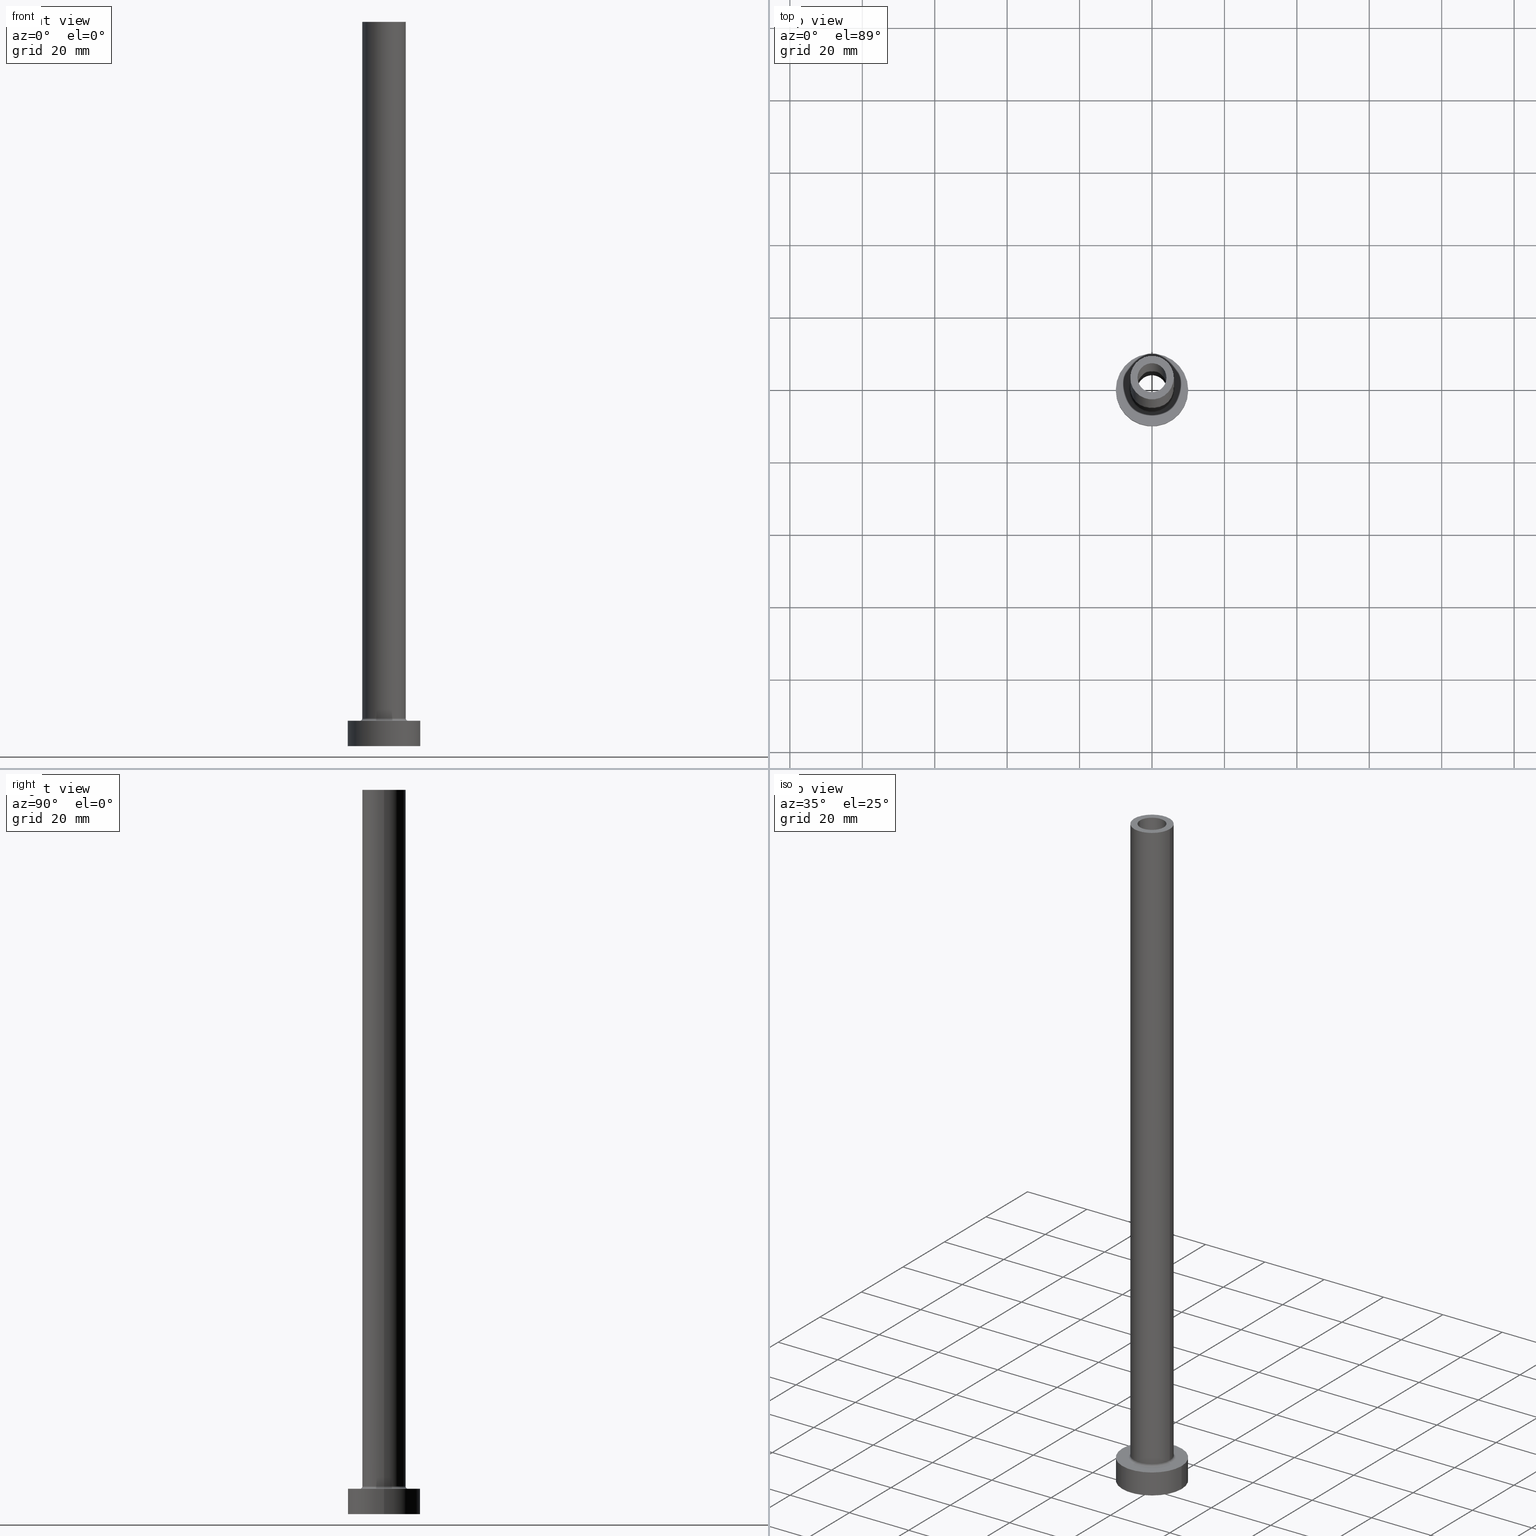
[diagram: canonical four-view strip — front | top / right | iso, engineering-drawing reading convention]
A machine part, canonical four-view strip (front | top / right | iso — engineering-drawing reading convention). The complete STEP part file that produces these views, byte-faithful:
ISO-10303-21;
HEADER;
FILE_DESCRIPTION (( 'STEP AP203' ),
    '1' );
FILE_NAME ('7876.STEP',
    '2023-02-13T12:45:52',
    ( '' ),
    ( '' ),
    'SwSTEP 2.0',
    'SolidWorks 2019',
    '' );
FILE_SCHEMA (( 'CONFIG_CONTROL_DESIGN' ));
ENDSEC;

DATA;
#1 = CARTESIAN_POINT ( 'NONE',  ( 0.000000000000000000, 0.000000000000000000, 200.0000000000000000 ) ) ;
#2 = ORIENTED_EDGE ( 'NONE', *, *, #424, .F. ) ;
#3 = EDGE_CURVE ( 'NONE', #444, #308, #278, .T. ) ;
#4 = ORIENTED_EDGE ( 'NONE', *, *, #450, .T. ) ;
#5 = EDGE_LOOP ( 'NONE', ( #305, #304, #359, #113 ) ) ;
#6 = AXIS2_PLACEMENT_3D ( 'NONE', #423, #202, #389 ) ;
#7 = AXIS2_PLACEMENT_3D ( 'NONE', #411, #235, #431 ) ;
#8 = DIRECTION ( 'NONE',  ( -0.000000000000000000, -0.000000000000000000, -1.000000000000000000 ) ) ;
#9 = ORIENTED_EDGE ( 'NONE', *, *, #3, .T. ) ;
#10 = DIRECTION ( 'NONE',  ( 0.000000000000000000, 0.000000000000000000, 1.000000000000000000 ) ) ;
#11 = EDGE_CURVE ( 'NONE', #86, #270, #30, .T. ) ;
#12 = CARTESIAN_POINT ( 'NONE',  ( 0.000000000000000000, 0.000000000000000000, 155.0000000000000284 ) ) ;
#13 = MANIFOLD_SOLID_BREP ( 'Odebrat vysunut�m4', #16 ) ;
#14 = AXIS2_PLACEMENT_3D ( 'NONE', #171, #81, #439 ) ;
#15 = ORIENTED_EDGE ( 'NONE', *, *, #430, .F. ) ;
#16 = CLOSED_SHELL ( 'NONE', ( #131, #164, #387, #97, #414, #143, #299, #232, #59, #116, #71, #150, #101, #36 ) ) ;
#17 = DIRECTION ( 'NONE',  ( 0.000000000000000000, 0.000000000000000000, 1.000000000000000000 ) ) ;
#18 = DIRECTION ( 'NONE',  ( 0.000000000000000000, 0.000000000000000000, -1.000000000000000000 ) ) ;
#19 = CARTESIAN_POINT ( 'NONE',  ( -6.000000000000000888, 0.000000000000000000, 200.0000000000000000 ) ) ;
#20 = DIRECTION ( 'NONE',  ( 1.000000000000000000, 0.000000000000000000, 0.000000000000000000 ) ) ;
#21 = CC_DESIGN_APPROVAL ( #47, ( #137 ) ) ;
#22 = EDGE_LOOP ( 'NONE', ( #313, #297, #160, #456 ) ) ;
#23 = AXIS2_PLACEMENT_3D ( 'NONE', #432, #10, #436 ) ;
#24 = AXIS2_PLACEMENT_3D ( 'NONE', #197, #378, #455 ) ;
#25 = EDGE_CURVE ( 'NONE', #112, #126, #217, .T. ) ;
#26 = DIRECTION ( 'NONE',  ( -1.000000000000000000, 0.000000000000000000, 0.000000000000000000 ) ) ;
#27 = CARTESIAN_POINT ( 'NONE',  ( 4.000000000000000000, 4.898587196589411843E-16, 200.0000000000000000 ) ) ;
#28 = CC_DESIGN_PERSON_AND_ORGANIZATION_ASSIGNMENT ( #286, #221, ( #344 ) ) ;
#29 = APPROVAL_ROLE ( '' ) ;
#30 = CIRCLE ( 'NONE', #145, 4.000000000000000000 ) ;
#31 = PLANE ( 'NONE',  #452 ) ;
#32 = PERSON_AND_ORGANIZATION ( #303, #199 ) ;
#33 = PRODUCT ( '7876', '7876', '', ( #418 ) ) ;
#34 = ORIENTED_EDGE ( 'NONE', *, *, #408, .T. ) ;
#35 = DIRECTION ( 'NONE',  ( 0.000000000000000000, 0.000000000000000000, 1.000000000000000000 ) ) ;
#36 = ADVANCED_FACE ( 'NONE', ( #182 ), #40, .F. ) ;
#37 = VERTEX_POINT ( 'NONE', #261 ) ;
#38 = DIRECTION ( 'NONE',  ( 1.000000000000000000, 0.000000000000000000, 0.000000000000000000 ) ) ;
#39 = EDGE_LOOP ( 'NONE', ( #93, #9 ) ) ;
#40 = CYLINDRICAL_SURFACE ( 'NONE', #397, 4.000000000000000000 ) ;
#41 = CARTESIAN_POINT ( 'NONE',  ( -6.700000000000001066, 8.205133554287267548E-16, 7.700000000000012612 ) ) ;
#42 = VERTEX_POINT ( 'NONE', #441 ) ;
#43 = VECTOR ( 'NONE', #247, 1000.000000000000000 ) ;
#44 = APPROVAL_STATUS ( 'not_yet_approved' ) ;
#45 = EDGE_LOOP ( 'NONE', ( #291, #49 ) ) ;
#46 = DIRECTION ( 'NONE',  ( -0.000000000000000000, -0.000000000000000000, -1.000000000000000000 ) ) ;
#47 = APPROVAL ( #100, 'NEUR�EN�' ) ;
#48 = AXIS2_PLACEMENT_3D ( 'NONE', #77, #46, #354 ) ;
#49 = ORIENTED_EDGE ( 'NONE', *, *, #175, .F. ) ;
#50 = CARTESIAN_POINT ( 'NONE',  ( 0.000000000000000000, 0.000000000000000000, 7.000000000000000000 ) ) ;
#51 = DIRECTION ( 'NONE',  ( 0.000000000000000000, 0.000000000000000000, 1.000000000000000000 ) ) ;
#52 = ORIENTED_EDGE ( 'NONE', *, *, #169, .F. ) ;
#53 = LOCAL_TIME ( 13, 45, 52.00000000000000000, #162 ) ;
#54 = DIRECTION ( 'NONE',  ( 1.000000000000000000, 0.000000000000000000, 0.000000000000000000 ) ) ;
#55 = EDGE_CURVE ( 'NONE', #308, #444, #454, .T. ) ;
#56 = VERTEX_POINT ( 'NONE', #417 ) ;
#57 = LINE ( 'NONE', #200, #85 ) ;
#58 = AXIS2_PLACEMENT_3D ( 'NONE', #208, #393, #70 ) ;
#59 = ADVANCED_FACE ( 'NONE', ( #153 ), #157, .T. ) ;
#60 = APPROVAL_STATUS ( 'not_yet_approved' ) ;
#61 = DIRECTION ( 'NONE',  ( -1.000000000000000000, 0.000000000000000000, 0.000000000000000000 ) ) ;
#62 = DATE_TIME_ROLE ( 'classification_date' ) ;
#63 = VERTEX_POINT ( 'NONE', #154 ) ;
#64 = EDGE_CURVE ( 'NONE', #308, #373, #263, .T. ) ;
#65 = CARTESIAN_POINT ( 'NONE',  ( 10.00000000000000000, 1.224646799147353256E-15, 0.000000000000000000 ) ) ;
#66 = ORIENTED_EDGE ( 'NONE', *, *, #25, .F. ) ;
#67 = CARTESIAN_POINT ( 'NONE',  ( 0.000000000000000000, 0.000000000000000000, 7.700000000000012612 ) ) ;
#68 = COORDINATED_UNIVERSAL_TIME_OFFSET ( 1, 0, .AHEAD. ) ;
#69 = CARTESIAN_POINT ( 'NONE',  ( -10.00000000000000000, 0.000000000000000000, 0.000000000000000000 ) ) ;
#70 = DIRECTION ( 'NONE',  ( 1.000000000000000000, 0.000000000000000000, 0.000000000000000000 ) ) ;
#71 = ADVANCED_FACE ( 'NONE', ( #375 ), #361, .F. ) ;
#72 = CARTESIAN_POINT ( 'NONE',  ( 4.000000000000000000, 4.898587196589411843E-16, 155.0000000000000284 ) ) ;
#73 = CIRCLE ( 'NONE', #23, 4.000000000000000000 ) ;
#74 = DIRECTION ( 'NONE',  ( -1.000000000000000000, 0.000000000000000000, 0.000000000000000000 ) ) ;
#75 = CALENDAR_DATE ( 2023, 13, 2 ) ;
#76 = ORIENTED_EDGE ( 'NONE', *, *, #25, .T. ) ;
#77 = CARTESIAN_POINT ( 'NONE',  ( 0.000000000000000000, 0.000000000000000000, 7.000000000000000000 ) ) ;
#78 = FACE_BOUND ( 'NONE', #410, .T. ) ;
#79 = EDGE_CURVE ( 'NONE', #367, #294, #57, .T. ) ;
#80 = ORIENTED_EDGE ( 'NONE', *, *, #64, .F. ) ;
#81 = DIRECTION ( 'NONE',  ( -0.000000000000000000, -0.000000000000000000, -1.000000000000000000 ) ) ;
#82 = CIRCLE ( 'NONE', #215, 4.000000000000000000 ) ;
#83 = EDGE_LOOP ( 'NONE', ( #401, #34 ) ) ;
#84 = DIRECTION ( 'NONE',  ( 1.000000000000000000, 0.000000000000000000, 0.000000000000000000 ) ) ;
#85 = VECTOR ( 'NONE', #336, 1000.000000000000000 ) ;
#86 = VERTEX_POINT ( 'NONE', #457 ) ;
#87 = ORIENTED_EDGE ( 'NONE', *, *, #209, .T. ) ;
#88 = DIRECTION ( 'NONE',  ( 1.000000000000000000, 0.000000000000000000, 0.000000000000000000 ) ) ;
#89 = ORIENTED_EDGE ( 'NONE', *, *, #319, .T. ) ;
#90 = CARTESIAN_POINT ( 'NONE',  ( -10.00000000000000000, 0.000000000000000000, 7.000000000000000000 ) ) ;
#91 = EDGE_CURVE ( 'NONE', #367, #358, #130, .T. ) ;
#92 = AXIS2_PLACEMENT_3D ( 'NONE', #230, #226, #196 ) ;
#93 = ORIENTED_EDGE ( 'NONE', *, *, #55, .T. ) ;
#94 = DIRECTION ( 'NONE',  ( 0.000000000000000000, 0.000000000000000000, -1.000000000000000000 ) ) ;
#95 = CARTESIAN_POINT ( 'NONE',  ( 0.000000000000000000, 0.000000000000000000, 200.0000000000000000 ) ) ;
#96 = DIRECTION ( 'NONE',  ( 0.000000000000000000, 0.000000000000000000, -1.000000000000000000 ) ) ;
#97 = ADVANCED_FACE ( 'NONE', ( #167 ), #238, .T. ) ;
#98 = CARTESIAN_POINT ( 'NONE',  ( 4.150000000000000355, 5.082284216461515156E-16, 155.0000000000000284 ) ) ;
#99 = APPROVAL_PERSON_ORGANIZATION ( #123, #352, #29 ) ;
#100 = APPROVAL_STATUS ( 'not_yet_approved' ) ;
#101 = ADVANCED_FACE ( 'NONE', ( #314, #311 ), #309, .F. ) ;
#102 = CIRCLE ( 'NONE', #360, 6.700000000000001066 ) ;
#103 = EDGE_LOOP ( 'NONE', ( #366, #259, #377, #147 ) ) ;
#104 = CARTESIAN_POINT ( 'NONE',  ( 4.150000000000000355, 5.082284216461515156E-16, 166.7379725676967439 ) ) ;
#105 = ORIENTED_EDGE ( 'NONE', *, *, #3, .F. ) ;
#106 = APPROVAL_PERSON_ORGANIZATION ( #136, #369, #295 ) ;
#107 = CARTESIAN_POINT ( 'NONE',  ( 0.000000000000000000, 0.000000000000000000, 166.7379725676967439 ) ) ;
#108 = PRODUCT_RELATED_PRODUCT_CATEGORY ( 'detail', '', ( #33 ) ) ;
#109 = CARTESIAN_POINT ( 'NONE',  ( -4.000000000000000000, 0.000000000000000000, 200.0000000000000000 ) ) ;
#110 = DATE_AND_TIME ( #437, #163 ) ;
#111 = CARTESIAN_POINT ( 'NONE',  ( 0.000000000000000000, 0.000000000000000000, 166.7379725676967439 ) ) ;
#112 = VERTEX_POINT ( 'NONE', #244 ) ;
#113 = ORIENTED_EDGE ( 'NONE', *, *, #220, .F. ) ;
#114 = VERTEX_POINT ( 'NONE', #65 ) ;
#115 = DIRECTION ( 'NONE',  ( 0.000000000000000000, 0.000000000000000000, 1.000000000000000000 ) ) ;
#116 = ADVANCED_FACE ( 'NONE', ( #206, #341 ), #31, .T. ) ;
#117 = CARTESIAN_POINT ( 'NONE',  ( 6.700000000000001066, 0.000000000000000000, 7.700000000000012612 ) ) ;
#118 = VERTEX_POINT ( 'NONE', #279 ) ;
#119 = DESIGN_CONTEXT ( 'detailed design', #324, 'design' ) ;
#120 = AXIS2_PLACEMENT_3D ( 'NONE', #1, #429, #133 ) ;
#121 = DIRECTION ( 'NONE',  ( -0.000000000000000000, -0.000000000000000000, -1.000000000000000000 ) ) ;
#122 = EDGE_CURVE ( 'NONE', #444, #114, #400, .T. ) ;
#123 = PERSON_AND_ORGANIZATION ( #303, #199 ) ;
#124 = DATE_AND_TIME ( #458, #214 ) ;
#125 = DIRECTION ( 'NONE',  ( 0.000000000000000000, 0.000000000000000000, 1.000000000000000000 ) ) ;
#126 = VERTEX_POINT ( 'NONE', #461 ) ;
#127 = VECTOR ( 'NONE', #8, 1000.000000000000000 ) ;
#128 =( NAMED_UNIT ( * ) PLANE_ANGLE_UNIT ( ) SI_UNIT ( $, .RADIAN. ) );
#129 = SECURITY_CLASSIFICATION_LEVEL ( 'unclassified' ) ;
#130 = CIRCLE ( 'NONE', #7, 6.000000000000000888 ) ;
#131 = ADVANCED_FACE ( 'NONE', ( #272 ), #204, .F. ) ;
#132 = APPROVAL_DATE_TIME ( #124, #47 ) ;
#133 = DIRECTION ( 'NONE',  ( -1.000000000000000000, 0.000000000000000000, 0.000000000000000000 ) ) ;
#134 = DIRECTION ( 'NONE',  ( 1.000000000000000000, 0.000000000000000000, 0.000000000000000000 ) ) ;
#135 = VERTEX_POINT ( 'NONE', #426 ) ;
#136 = PERSON_AND_ORGANIZATION ( #303, #199 ) ;
#137 = SECURITY_CLASSIFICATION ( '', '', #129 ) ;
#138 = AXIS2_PLACEMENT_3D ( 'NONE', #326, #17, #38 ) ;
#139 = EDGE_CURVE ( 'NONE', #63, #362, #346, .T. ) ;
#140 = FACE_OUTER_BOUND ( 'NONE', #178, .T. ) ;
#141 = ORIENTED_EDGE ( 'NONE', *, *, #122, .T. ) ;
#142 = ORIENTED_EDGE ( 'NONE', *, *, #79, .F. ) ;
#143 = ADVANCED_FACE ( 'NONE', ( #146 ), #355, .T. ) ;
#144 = AXIS2_PLACEMENT_3D ( 'NONE', #320, #212, #318 ) ;
#145 = AXIS2_PLACEMENT_3D ( 'NONE', #12, #363, #20 ) ;
#146 = FACE_OUTER_BOUND ( 'NONE', #448, .T. ) ;
#147 = ORIENTED_EDGE ( 'NONE', *, *, #209, .F. ) ;
#148 = CC_DESIGN_APPROVAL ( #352, ( #344 ) ) ;
#149 = AXIS2_PLACEMENT_3D ( 'NONE', #246, #35, #395 ) ;
#150 = ADVANCED_FACE ( 'NONE', ( #174 ), #434, .F. ) ;
#151 = CARTESIAN_POINT ( 'NONE',  ( 0.000000000000000000, 0.000000000000000000, 0.000000000000000000 ) ) ;
#152 = FACE_OUTER_BOUND ( 'NONE', #39, .T. ) ;
#153 = FACE_OUTER_BOUND ( 'NONE', #438, .T. ) ;
#154 = CARTESIAN_POINT ( 'NONE',  ( -4.150000000000000355, 0.000000000000000000, 155.0000000000000284 ) ) ;
#155 = EDGE_CURVE ( 'NONE', #135, #37, #331, .T. ) ;
#156 = CIRCLE ( 'NONE', #234, 6.000000000000000888 ) ;
#157 = CYLINDRICAL_SURFACE ( 'NONE', #159, 6.000000000000000888 ) ;
#158 = PERSON_AND_ORGANIZATION ( #303, #199 ) ;
#159 = AXIS2_PLACEMENT_3D ( 'NONE', #95, #195, #26 ) ;
#160 = ORIENTED_EDGE ( 'NONE', *, *, #11, .F. ) ;
#161 = APPROVAL_ROLE ( '' ) ;
#162 = COORDINATED_UNIVERSAL_TIME_OFFSET ( 1, 0, .AHEAD. ) ;
#163 = LOCAL_TIME ( 13, 45, 52.00000000000000000, #353 ) ;
#164 = ADVANCED_FACE ( 'NONE', ( #225 ), #219, .F. ) ;
#165 = AXIS2_PLACEMENT_3D ( 'NONE', #186, #229, #453 ) ;
#166 = CARTESIAN_POINT ( 'NONE',  ( 0.000000000000000000, 0.000000000000000000, 200.0000000000000000 ) ) ;
#167 = FACE_OUTER_BOUND ( 'NONE', #5, .T. ) ;
#168 = EDGE_LOOP ( 'NONE', ( #287, #327 ) ) ;
#169 = EDGE_CURVE ( 'NONE', #358, #367, #265, .T. ) ;
#170 = VECTOR ( 'NONE', #252, 1000.000000000000000 ) ;
#171 = CARTESIAN_POINT ( 'NONE',  ( 0.000000000000000000, 0.000000000000000000, 0.000000000000000000 ) ) ;
#172 = ADVANCED_BREP_SHAPE_REPRESENTATION ( '7876', ( #13, #406 ), #224 ) ;
#173 = AXIS2_PLACEMENT_3D ( 'NONE', #176, #254, #84 ) ;
#174 = FACE_OUTER_BOUND ( 'NONE', #321, .T. ) ;
#175 = EDGE_CURVE ( 'NONE', #56, #118, #73, .T. ) ;
#176 = CARTESIAN_POINT ( 'NONE',  ( 0.000000000000000000, 0.000000000000000000, 7.000000000000000000 ) ) ;
#177 = DIRECTION ( 'NONE',  ( 0.000000000000000000, 0.000000000000000000, 1.000000000000000000 ) ) ;
#178 = EDGE_LOOP ( 'NONE', ( #218, #416 ) ) ;
#179 = CARTESIAN_POINT ( 'NONE',  ( 0.000000000000000000, 0.000000000000000000, 200.0000000000000000 ) ) ;
#180 = AXIS2_PLACEMENT_3D ( 'NONE', #207, #412, #446 ) ;
#181 = DIRECTION ( 'NONE',  ( 0.000000000000000000, 0.000000000000000000, -1.000000000000000000 ) ) ;
#182 = FACE_OUTER_BOUND ( 'NONE', #356, .T. ) ;
#183 = DIRECTION ( 'NONE',  ( 1.000000000000000000, 0.000000000000000000, 0.000000000000000000 ) ) ;
#184 = DIRECTION ( 'NONE',  ( -1.000000000000000000, 0.000000000000000000, 0.000000000000000000 ) ) ;
#185 = CARTESIAN_POINT ( 'NONE',  ( 0.000000000000000000, 0.000000000000000000, 7.000000000000000000 ) ) ;
#186 = CARTESIAN_POINT ( 'NONE',  ( 0.000000000000000000, 0.000000000000000000, 0.000000000000000000 ) ) ;
#187 = ORIENTED_EDGE ( 'NONE', *, *, #459, .F. ) ;
#188 = ORIENTED_EDGE ( 'NONE', *, *, #64, .T. ) ;
#189 = LOCAL_TIME ( 13, 45, 52.00000000000000000, #68 ) ;
#190 = DIRECTION ( 'NONE',  ( 0.000000000000000000, 0.000000000000000000, 1.000000000000000000 ) ) ;
#191 = CIRCLE ( 'NONE', #138, 4.000000000000000000 ) ;
#192 = DIRECTION ( 'NONE',  ( -1.000000000000000000, 0.000000000000000000, 0.000000000000000000 ) ) ;
#193 = ORIENTED_EDGE ( 'NONE', *, *, #319, .F. ) ;
#194 = CC_DESIGN_PERSON_AND_ORGANIZATION_ASSIGNMENT ( #271, #394, ( #248 ) ) ;
#195 = DIRECTION ( 'NONE',  ( -0.000000000000000000, -0.000000000000000000, -1.000000000000000000 ) ) ;
#196 = DIRECTION ( 'NONE',  ( 1.000000000000000000, 0.000000000000000000, 0.000000000000000000 ) ) ;
#197 = CARTESIAN_POINT ( 'NONE',  ( 0.000000000000000000, 0.000000000000000000, 7.700000000000012612 ) ) ;
#198 = PLANE ( 'NONE',  #371 ) ;
#199 = ORGANIZATION ( 'NEUR�EN�', 'NEUR�EN�', '' ) ;
#200 = CARTESIAN_POINT ( 'NONE',  ( 6.000000000000000888, 7.347880794884120722E-16, 200.0000000000000000 ) ) ;
#201 = EDGE_CURVE ( 'NONE', #42, #126, #413, .T. ) ;
#202 = DIRECTION ( 'NONE',  ( 0.000000000000000000, 0.000000000000000000, 1.000000000000000000 ) ) ;
#203 = PERSON_AND_ORGANIZATION ( #303, #199 ) ;
#204 = CYLINDRICAL_SURFACE ( 'NONE', #120, 4.000000000000000000 ) ;
#205 = AXIS2_PLACEMENT_3D ( 'NONE', #292, #51, #183 ) ;
#206 = FACE_BOUND ( 'NONE', #45, .T. ) ;
#207 = CARTESIAN_POINT ( 'NONE',  ( 0.000000000000000000, 0.000000000000000000, 7.700000000000012612 ) ) ;
#208 = CARTESIAN_POINT ( 'NONE',  ( 0.000000000000000000, 0.000000000000000000, 155.0000000000000284 ) ) ;
#209 = EDGE_CURVE ( 'NONE', #63, #37, #216, .T. ) ;
#210 = CALENDAR_DATE ( 2023, 13, 2 ) ;
#211 = APPROVAL_DATE_TIME ( #323, #352 ) ;
#212 = DIRECTION ( 'NONE',  ( -0.000000000000000000, -0.000000000000000000, -1.000000000000000000 ) ) ;
#213 = ORIENTED_EDGE ( 'NONE', *, *, #220, .T. ) ;
#214 = LOCAL_TIME ( 13, 45, 52.00000000000000000, #307 ) ;
#215 = AXIS2_PLACEMENT_3D ( 'NONE', #407, #364, #88 ) ;
#216 = LINE ( 'NONE', #348, #315 ) ;
#217 = CIRCLE ( 'NONE', #48, 6.700000000000001066 ) ;
#218 = ORIENTED_EDGE ( 'NONE', *, *, #282, .F. ) ;
#219 = CYLINDRICAL_SURFACE ( 'NONE', #392, 4.150000000000000355 ) ;
#220 = EDGE_CURVE ( 'NONE', #358, #42, #350, .T. ) ;
#221 = PERSON_AND_ORGANIZATION_ROLE ( 'creator' ) ;
#222 = EDGE_LOOP ( 'NONE', ( #105, #141, #260, #80 ) ) ;
#223 = DIRECTION ( 'NONE',  ( 0.000000000000000000, 0.000000000000000000, -1.000000000000000000 ) ) ;
#224 =( GEOMETRIC_REPRESENTATION_CONTEXT ( 3 ) GLOBAL_UNCERTAINTY_ASSIGNED_CONTEXT ( ( #338 ) ) GLOBAL_UNIT_ASSIGNED_CONTEXT ( ( #334, #128, #239 ) ) REPRESENTATION_CONTEXT ( 'NONE', 'WORKASPACE' ) );
#225 = FACE_OUTER_BOUND ( 'NONE', #103, .T. ) ;
#226 = DIRECTION ( 'NONE',  ( -0.000000000000000000, -0.000000000000000000, -1.000000000000000000 ) ) ;
#227 = CARTESIAN_POINT ( 'NONE',  ( 0.000000000000000000, 0.000000000000000000, 7.000000000000000000 ) ) ;
#228 = ORIENTED_EDGE ( 'NONE', *, *, #459, .T. ) ;
#229 = DIRECTION ( 'NONE',  ( 0.000000000000000000, 0.000000000000000000, 1.000000000000000000 ) ) ;
#230 = CARTESIAN_POINT ( 'NONE',  ( 0.000000000000000000, 0.000000000000000000, 0.000000000000000000 ) ) ;
#231 = AXIS2_PLACEMENT_3D ( 'NONE', #67, #115, #54 ) ;
#232 = ADVANCED_FACE ( 'NONE', ( #442, #140 ), #405, .F. ) ;
#233 = APPLICATION_PROTOCOL_DEFINITION ( 'international standard', 'config_control_design', 1994, #324 ) ;
#234 = AXIS2_PLACEMENT_3D ( 'NONE', #391, #125, #339 ) ;
#235 = DIRECTION ( 'NONE',  ( 0.000000000000000000, 0.000000000000000000, 1.000000000000000000 ) ) ;
#236 = CC_DESIGN_DATE_AND_TIME_ASSIGNMENT ( #110, #276, ( #344 ) ) ;
#237 = VECTOR ( 'NONE', #121, 1000.000000000000000 ) ;
#238 = CYLINDRICAL_SURFACE ( 'NONE', #317, 6.000000000000000888 ) ;
#239 =( NAMED_UNIT ( * ) SI_UNIT ( $, .STERADIAN. ) SOLID_ANGLE_UNIT ( ) );
#240 = APPLICATION_PROTOCOL_DEFINITION ( 'international standard', 'config_control_design', 1994, #300 ) ;
#241 = EDGE_CURVE ( 'NONE', #118, #56, #191, .T. ) ;
#242 = TOROIDAL_SURFACE ( 'NONE', #180, 6.700000000000001066, 0.6999999999999999556 ) ;
#243 = ORIENTED_EDGE ( 'NONE', *, *, #201, .F. ) ;
#244 = CARTESIAN_POINT ( 'NONE',  ( 6.700000000000001066, 0.000000000000000000, 7.000000000000006217 ) ) ;
#245 = CALENDAR_DATE ( 2023, 13, 2 ) ;
#246 = CARTESIAN_POINT ( 'NONE',  ( 0.000000000000000000, 0.000000000000000000, 0.000000000000000000 ) ) ;
#247 = DIRECTION ( 'NONE',  ( 0.000000000000000000, 0.000000000000000000, -1.000000000000000000 ) ) ;
#248 = PRODUCT_DEFINITION_FORMATION_WITH_SPECIFIED_SOURCE ( 'LIBOVOLN�', '', #33, .NOT_KNOWN. ) ;
#249 = DIRECTION ( 'NONE',  ( 1.000000000000000000, 0.000000000000000000, -0.000000000000000000 ) ) ;
#250 = EDGE_CURVE ( 'NONE', #362, #135, #280, .T. ) ;
#251 = CARTESIAN_POINT ( 'NONE',  ( 0.000000000000000000, 0.000000000000000000, 200.0000000000000000 ) ) ;
#252 = DIRECTION ( 'NONE',  ( 0.000000000000000000, 0.000000000000000000, -1.000000000000000000 ) ) ;
#253 = ORIENTED_EDGE ( 'NONE', *, *, #201, .T. ) ;
#254 = DIRECTION ( 'NONE',  ( 0.000000000000000000, 0.000000000000000000, 1.000000000000000000 ) ) ;
#255 = DIRECTION ( 'NONE',  ( 0.000000000000000000, 0.000000000000000000, 1.000000000000000000 ) ) ;
#256 = ORIENTED_EDGE ( 'NONE', *, *, #288, .T. ) ;
#257 = CARTESIAN_POINT ( 'NONE',  ( 10.00000000000000000, 1.224646799147353256E-15, 7.000000000000000000 ) ) ;
#258 = AXIS2_PLACEMENT_3D ( 'NONE', #41, #328, #345 ) ;
#259 = ORIENTED_EDGE ( 'NONE', *, *, #250, .T. ) ;
#260 = ORIENTED_EDGE ( 'NONE', *, *, #310, .T. ) ;
#261 = CARTESIAN_POINT ( 'NONE',  ( -4.150000000000000355, 0.000000000000000000, 0.000000000000000000 ) ) ;
#262 = ORIENTED_EDGE ( 'NONE', *, *, #139, .F. ) ;
#263 = LINE ( 'NONE', #90, #237 ) ;
#264 = DIRECTION ( 'NONE',  ( 0.000000000000000000, -1.000000000000000000, 0.000000000000000000 ) ) ;
#265 = CIRCLE ( 'NONE', #269, 6.000000000000000888 ) ;
#266 = DIRECTION ( 'NONE',  ( 1.000000000000000000, 0.000000000000000000, 0.000000000000000000 ) ) ;
#267 = DIRECTION ( 'NONE',  ( 1.000000000000000000, 0.000000000000000000, 0.000000000000000000 ) ) ;
#268 = PERSON_AND_ORGANIZATION ( #303, #199 ) ;
#269 = AXIS2_PLACEMENT_3D ( 'NONE', #251, #255, #399 ) ;
#270 = VERTEX_POINT ( 'NONE', #72 ) ;
#271 = PERSON_AND_ORGANIZATION ( #303, #199 ) ;
#272 = FACE_OUTER_BOUND ( 'NONE', #22, .T. ) ;
#273 = CC_DESIGN_PERSON_AND_ORGANIZATION_ASSIGNMENT ( #203, #386, ( #248 ) ) ;
#274 = EDGE_LOOP ( 'NONE', ( #2, #447 ) ) ;
#275 = LOCAL_TIME ( 13, 45, 52.00000000000000000, #460 ) ;
#276 = DATE_TIME_ROLE ( 'creation_date' ) ;
#277 = AXIS2_PLACEMENT_3D ( 'NONE', #289, #177, #322 ) ;
#278 = CIRCLE ( 'NONE', #173, 10.00000000000000000 ) ;
#279 = CARTESIAN_POINT ( 'NONE',  ( -4.000000000000000000, 0.000000000000000000, 200.0000000000000000 ) ) ;
#280 = LINE ( 'NONE', #104, #43 ) ;
#281 = PRODUCT_DEFINITION_SHAPE ( 'NONE', 'NONE',  #344 ) ;
#282 = EDGE_CURVE ( 'NONE', #373, #114, #379, .T. ) ;
#283 = ORIENTED_EDGE ( 'NONE', *, *, #122, .F. ) ;
#284 = CIRCLE ( 'NONE', #92, 4.150000000000000355 ) ;
#285 = LINE ( 'NONE', #109, #170 ) ;
#286 = PERSON_AND_ORGANIZATION ( #303, #199 ) ;
#287 = ORIENTED_EDGE ( 'NONE', *, *, #169, .T. ) ;
#288 = EDGE_CURVE ( 'NONE', #118, #86, #285, .T. ) ;
#289 = CARTESIAN_POINT ( 'NONE',  ( 0.000000000000000000, 0.000000000000000000, 0.000000000000000000 ) ) ;
#290 = ORIENTED_EDGE ( 'NONE', *, *, #332, .T. ) ;
#291 = ORIENTED_EDGE ( 'NONE', *, *, #241, .F. ) ;
#292 = CARTESIAN_POINT ( 'NONE',  ( 0.000000000000000000, 0.000000000000000000, 155.0000000000000284 ) ) ;
#293 = DIRECTION ( 'NONE',  ( 0.000000000000000000, 0.000000000000000000, -1.000000000000000000 ) ) ;
#294 = VERTEX_POINT ( 'NONE', #402 ) ;
#295 = APPROVAL_ROLE ( '' ) ;
#296 = EDGE_LOOP ( 'NONE', ( #262, #347 ) ) ;
#297 = ORIENTED_EDGE ( 'NONE', *, *, #430, .T. ) ;
#298 = VECTOR ( 'NONE', #316, 1000.000000000000000 ) ;
#299 = ADVANCED_FACE ( 'NONE', ( #78, #152 ), #198, .T. ) ;
#300 = APPLICATION_CONTEXT ( 'configuration controlled 3d designs of mechanical parts and assemblies' ) ;
#301 = CIRCLE ( 'NONE', #205, 4.150000000000000355 ) ;
#302 = AXIS2_PLACEMENT_3D ( 'NONE', #50, #449, #266 ) ;
#303 = PERSON ( 'NEUR�EN�', 'NEUR�EN�', 'NEUR�EN�', ('NEUR�EN�'), ('NEUR�EN�'), ('NEUR�EN�') ) ;
#304 = ORIENTED_EDGE ( 'NONE', *, *, #79, .T. ) ;
#305 = ORIENTED_EDGE ( 'NONE', *, *, #91, .F. ) ;
#306 = DIRECTION ( 'NONE',  ( -0.000000000000000000, -0.000000000000000000, -1.000000000000000000 ) ) ;
#307 = COORDINATED_UNIVERSAL_TIME_OFFSET ( 1, 0, .AHEAD. ) ;
#308 = VERTEX_POINT ( 'NONE', #451 ) ;
#309 = PLANE ( 'NONE',  #6 ) ;
#310 = EDGE_CURVE ( 'NONE', #114, #373, #422, .T. ) ;
#311 = FACE_OUTER_BOUND ( 'NONE', #296, .T. ) ;
#312 = DIRECTION ( 'NONE',  ( 0.000000000000000000, 0.000000000000000000, 1.000000000000000000 ) ) ;
#313 = ORIENTED_EDGE ( 'NONE', *, *, #241, .T. ) ;
#314 = FACE_BOUND ( 'NONE', #83, .T. ) ;
#315 = VECTOR ( 'NONE', #181, 1000.000000000000000 ) ;
#316 = DIRECTION ( 'NONE',  ( -0.000000000000000000, -0.000000000000000000, -1.000000000000000000 ) ) ;
#317 = AXIS2_PLACEMENT_3D ( 'NONE', #385, #382, #61 ) ;
#318 = DIRECTION ( 'NONE',  ( -1.000000000000000000, 0.000000000000000000, 0.000000000000000000 ) ) ;
#319 = EDGE_CURVE ( 'NONE', #294, #112, #435, .T. ) ;
#320 = CARTESIAN_POINT ( 'NONE',  ( 0.000000000000000000, 0.000000000000000000, 7.000000000000000000 ) ) ;
#321 = EDGE_LOOP ( 'NONE', ( #404, #4, #87, #440 ) ) ;
#322 = DIRECTION ( 'NONE',  ( 1.000000000000000000, 0.000000000000000000, 0.000000000000000000 ) ) ;
#323 = DATE_AND_TIME ( #75, #53 ) ;
#324 = APPLICATION_CONTEXT ( 'configuration controlled 3d designs of mechanical parts and assemblies' ) ;
#325 = CC_DESIGN_DATE_AND_TIME_ASSIGNMENT ( #343, #62, ( #137 ) ) ;
#326 = CARTESIAN_POINT ( 'NONE',  ( 0.000000000000000000, 0.000000000000000000, 200.0000000000000000 ) ) ;
#327 = ORIENTED_EDGE ( 'NONE', *, *, #91, .T. ) ;
#328 = DIRECTION ( 'NONE',  ( 1.224646799147353207E-16, 1.000000000000000000, -0.000000000000000000 ) ) ;
#329 = EDGE_LOOP ( 'NONE', ( #243, #351, #89, #187 ) ) ;
#330 = DIRECTION ( 'NONE',  ( -1.000000000000000000, 0.000000000000000000, 0.000000000000000000 ) ) ;
#331 = CIRCLE ( 'NONE', #14, 4.150000000000000355 ) ;
#332 = EDGE_CURVE ( 'NONE', #42, #294, #156, .T. ) ;
#333 = LINE ( 'NONE', #27, #340 ) ;
#334 =( LENGTH_UNIT ( ) NAMED_UNIT ( * ) SI_UNIT ( .MILLI., .METRE. ) );
#335 = AXIS2_PLACEMENT_3D ( 'NONE', #376, #409, #192 ) ;
#336 = DIRECTION ( 'NONE',  ( -0.000000000000000000, -0.000000000000000000, -1.000000000000000000 ) ) ;
#337 = PERSON_AND_ORGANIZATION_ROLE ( 'classification_officer' ) ;
#338 = UNCERTAINTY_MEASURE_WITH_UNIT (LENGTH_MEASURE( 1.000000000000000082E-05 ), #334, 'distance_accuracy_value', 'NONE');
#339 = DIRECTION ( 'NONE',  ( 1.000000000000000000, 0.000000000000000000, 0.000000000000000000 ) ) ;
#340 = VECTOR ( 'NONE', #96, 1000.000000000000000 ) ;
#341 = FACE_OUTER_BOUND ( 'NONE', #168, .T. ) ;
#342 = ORIENTED_EDGE ( 'NONE', *, *, #408, .F. ) ;
#343 = DATE_AND_TIME ( #210, #189 ) ;
#344 = PRODUCT_DEFINITION ( 'NEZN�M�', '', #248, #119 ) ;
#345 = DIRECTION ( 'NONE',  ( -1.000000000000000000, 1.224646799147353454E-16, 0.000000000000000000 ) ) ;
#346 = CIRCLE ( 'NONE', #58, 4.150000000000000355 ) ;
#347 = ORIENTED_EDGE ( 'NONE', *, *, #450, .F. ) ;
#348 = CARTESIAN_POINT ( 'NONE',  ( -4.150000000000000355, 0.000000000000000000, 166.7379725676967439 ) ) ;
#349 = EDGE_LOOP ( 'NONE', ( #390, #253, #66, #193 ) ) ;
#350 = LINE ( 'NONE', #19, #127 ) ;
#351 = ORIENTED_EDGE ( 'NONE', *, *, #398, .F. ) ;
#352 = APPROVAL ( #60, 'NEUR�EN�' ) ;
#353 = COORDINATED_UNIVERSAL_TIME_OFFSET ( 1, 0, .AHEAD. ) ;
#354 = DIRECTION ( 'NONE',  ( 1.000000000000000000, 0.000000000000000000, 0.000000000000000000 ) ) ;
#355 = CYLINDRICAL_SURFACE ( 'NONE', #144, 10.00000000000000000 ) ;
#356 = EDGE_LOOP ( 'NONE', ( #15, #419, #256, #342 ) ) ;
#357 = CC_DESIGN_APPROVAL ( #369, ( #248 ) ) ;
#358 = VERTEX_POINT ( 'NONE', #384 ) ;
#359 = ORIENTED_EDGE ( 'NONE', *, *, #398, .T. ) ;
#360 = AXIS2_PLACEMENT_3D ( 'NONE', #185, #306, #267 ) ;
#361 = TOROIDAL_SURFACE ( 'NONE', #24, 6.700000000000001066, 0.6999999999999999556 ) ;
#362 = VERTEX_POINT ( 'NONE', #98 ) ;
#363 = DIRECTION ( 'NONE',  ( 0.000000000000000000, 0.000000000000000000, 1.000000000000000000 ) ) ;
#364 = DIRECTION ( 'NONE',  ( 0.000000000000000000, 0.000000000000000000, 1.000000000000000000 ) ) ;
#365 = DIRECTION ( 'NONE',  ( 1.000000000000000000, 0.000000000000000000, -0.000000000000000000 ) ) ;
#366 = ORIENTED_EDGE ( 'NONE', *, *, #139, .T. ) ;
#367 = VERTEX_POINT ( 'NONE', #428 ) ;
#368 = CYLINDRICAL_SURFACE ( 'NONE', #335, 10.00000000000000000 ) ;
#369 = APPROVAL ( #44, 'NEUR�EN�' ) ;
#370 = CC_DESIGN_SECURITY_CLASSIFICATION ( #137, ( #248 ) ) ;
#371 = AXIS2_PLACEMENT_3D ( 'NONE', #227, #190, #365 ) ;
#372 = FACE_OUTER_BOUND ( 'NONE', #222, .T. ) ;
#373 = VERTEX_POINT ( 'NONE', #69 ) ;
#374 = CC_DESIGN_PERSON_AND_ORGANIZATION_ASSIGNMENT ( #268, #337, ( #137 ) ) ;
#375 = FACE_OUTER_BOUND ( 'NONE', #329, .T. ) ;
#376 = CARTESIAN_POINT ( 'NONE',  ( 0.000000000000000000, 0.000000000000000000, 7.000000000000000000 ) ) ;
#377 = ORIENTED_EDGE ( 'NONE', *, *, #155, .T. ) ;
#378 = DIRECTION ( 'NONE',  ( 0.000000000000000000, 0.000000000000000000, 1.000000000000000000 ) ) ;
#379 = CIRCLE ( 'NONE', #277, 10.00000000000000000 ) ;
#380 = CIRCLE ( 'NONE', #231, 6.000000000000000888 ) ;
#381 = PERSON_AND_ORGANIZATION_ROLE ( 'design_owner' ) ;
#382 = DIRECTION ( 'NONE',  ( -0.000000000000000000, -0.000000000000000000, -1.000000000000000000 ) ) ;
#383 = SHAPE_DEFINITION_REPRESENTATION ( #281, #172 ) ;
#384 = CARTESIAN_POINT ( 'NONE',  ( -6.000000000000000888, 0.000000000000000000, 200.0000000000000000 ) ) ;
#385 = CARTESIAN_POINT ( 'NONE',  ( 0.000000000000000000, 0.000000000000000000, 200.0000000000000000 ) ) ;
#386 = PERSON_AND_ORGANIZATION_ROLE ( 'creator' ) ;
#387 = ADVANCED_FACE ( 'NONE', ( #425 ), #242, .F. ) ;
#388 = DIRECTION ( 'NONE',  ( 0.000000000000000000, 0.000000000000000000, 1.000000000000000000 ) ) ;
#389 = DIRECTION ( 'NONE',  ( 1.000000000000000000, 0.000000000000000000, -0.000000000000000000 ) ) ;
#390 = ORIENTED_EDGE ( 'NONE', *, *, #332, .F. ) ;
#391 = CARTESIAN_POINT ( 'NONE',  ( 0.000000000000000000, 0.000000000000000000, 7.700000000000012612 ) ) ;
#392 = AXIS2_PLACEMENT_3D ( 'NONE', #111, #293, #184 ) ;
#393 = DIRECTION ( 'NONE',  ( 0.000000000000000000, 0.000000000000000000, 1.000000000000000000 ) ) ;
#394 = PERSON_AND_ORGANIZATION_ROLE ( 'design_supplier' ) ;
#395 = DIRECTION ( 'NONE',  ( 1.000000000000000000, 0.000000000000000000, -0.000000000000000000 ) ) ;
#396 = AXIS2_PLACEMENT_3D ( 'NONE', #107, #223, #74 ) ;
#397 = AXIS2_PLACEMENT_3D ( 'NONE', #179, #18, #330 ) ;
#398 = EDGE_CURVE ( 'NONE', #294, #42, #380, .T. ) ;
#399 = DIRECTION ( 'NONE',  ( 1.000000000000000000, 0.000000000000000000, 0.000000000000000000 ) ) ;
#400 = LINE ( 'NONE', #403, #298 ) ;
#401 = ORIENTED_EDGE ( 'NONE', *, *, #11, .T. ) ;
#402 = CARTESIAN_POINT ( 'NONE',  ( 6.000000000000000888, 7.347880794884120722E-16, 7.700000000000012612 ) ) ;
#403 = CARTESIAN_POINT ( 'NONE',  ( 10.00000000000000000, 1.224646799147353256E-15, 7.000000000000000000 ) ) ;
#404 = ORIENTED_EDGE ( 'NONE', *, *, #250, .F. ) ;
#405 = PLANE ( 'NONE',  #149 ) ;
#406 = AXIS2_PLACEMENT_3D ( 'NONE', #151, #388, #134 ) ;
#407 = CARTESIAN_POINT ( 'NONE',  ( 0.000000000000000000, 0.000000000000000000, 155.0000000000000284 ) ) ;
#408 = EDGE_CURVE ( 'NONE', #270, #86, #82, .T. ) ;
#409 = DIRECTION ( 'NONE',  ( -0.000000000000000000, -0.000000000000000000, -1.000000000000000000 ) ) ;
#410 = EDGE_LOOP ( 'NONE', ( #76, #228 ) ) ;
#411 = CARTESIAN_POINT ( 'NONE',  ( 0.000000000000000000, 0.000000000000000000, 200.0000000000000000 ) ) ;
#412 = DIRECTION ( 'NONE',  ( 0.000000000000000000, 0.000000000000000000, 1.000000000000000000 ) ) ;
#413 = CIRCLE ( 'NONE', #258, 0.7000000000000000666 ) ;
#414 = ADVANCED_FACE ( 'NONE', ( #372 ), #368, .T. ) ;
#415 = ORIENTED_EDGE ( 'NONE', *, *, #55, .F. ) ;
#416 = ORIENTED_EDGE ( 'NONE', *, *, #310, .F. ) ;
#417 = CARTESIAN_POINT ( 'NONE',  ( 4.000000000000000000, 4.898587196589411843E-16, 200.0000000000000000 ) ) ;
#418 = MECHANICAL_CONTEXT ( 'NONE', #300, 'mechanical' ) ;
#419 = ORIENTED_EDGE ( 'NONE', *, *, #175, .T. ) ;
#420 = APPROVAL_PERSON_ORGANIZATION ( #32, #47, #161 ) ;
#421 = APPROVAL_DATE_TIME ( #427, #369 ) ;
#422 = CIRCLE ( 'NONE', #165, 10.00000000000000000 ) ;
#423 = CARTESIAN_POINT ( 'NONE',  ( 0.000000000000000000, 0.000000000000000000, 155.0000000000000284 ) ) ;
#424 = EDGE_CURVE ( 'NONE', #37, #135, #284, .T. ) ;
#425 = FACE_OUTER_BOUND ( 'NONE', #349, .T. ) ;
#426 = CARTESIAN_POINT ( 'NONE',  ( 4.150000000000000355, 5.082284216461515156E-16, 0.000000000000000000 ) ) ;
#427 = DATE_AND_TIME ( #245, #275 ) ;
#428 = CARTESIAN_POINT ( 'NONE',  ( 6.000000000000000888, 7.347880794884120722E-16, 200.0000000000000000 ) ) ;
#429 = DIRECTION ( 'NONE',  ( 0.000000000000000000, 0.000000000000000000, -1.000000000000000000 ) ) ;
#430 = EDGE_CURVE ( 'NONE', #56, #270, #333, .T. ) ;
#431 = DIRECTION ( 'NONE',  ( 1.000000000000000000, 0.000000000000000000, 0.000000000000000000 ) ) ;
#432 = CARTESIAN_POINT ( 'NONE',  ( 0.000000000000000000, 0.000000000000000000, 200.0000000000000000 ) ) ;
#433 = ORIENTED_EDGE ( 'NONE', *, *, #282, .T. ) ;
#434 = CYLINDRICAL_SURFACE ( 'NONE', #396, 4.150000000000000355 ) ;
#435 = CIRCLE ( 'NONE', #445, 0.7000000000000000666 ) ;
#436 = DIRECTION ( 'NONE',  ( 1.000000000000000000, 0.000000000000000000, 0.000000000000000000 ) ) ;
#437 = CALENDAR_DATE ( 2023, 13, 2 ) ;
#438 = EDGE_LOOP ( 'NONE', ( #142, #52, #213, #290 ) ) ;
#439 = DIRECTION ( 'NONE',  ( 1.000000000000000000, 0.000000000000000000, 0.000000000000000000 ) ) ;
#440 = ORIENTED_EDGE ( 'NONE', *, *, #424, .T. ) ;
#441 = CARTESIAN_POINT ( 'NONE',  ( -6.000000000000000888, 0.000000000000000000, 7.700000000000012612 ) ) ;
#442 = FACE_BOUND ( 'NONE', #274, .T. ) ;
#443 = CC_DESIGN_PERSON_AND_ORGANIZATION_ASSIGNMENT ( #158, #381, ( #33 ) ) ;
#444 = VERTEX_POINT ( 'NONE', #257 ) ;
#445 = AXIS2_PLACEMENT_3D ( 'NONE', #117, #264, #94 ) ;
#446 = DIRECTION ( 'NONE',  ( 1.000000000000000000, 0.000000000000000000, 0.000000000000000000 ) ) ;
#447 = ORIENTED_EDGE ( 'NONE', *, *, #155, .F. ) ;
#448 = EDGE_LOOP ( 'NONE', ( #283, #415, #188, #433 ) ) ;
#449 = DIRECTION ( 'NONE',  ( 0.000000000000000000, 0.000000000000000000, 1.000000000000000000 ) ) ;
#450 = EDGE_CURVE ( 'NONE', #362, #63, #301, .T. ) ;
#451 = CARTESIAN_POINT ( 'NONE',  ( -10.00000000000000000, 0.000000000000000000, 7.000000000000000000 ) ) ;
#452 = AXIS2_PLACEMENT_3D ( 'NONE', #166, #312, #249 ) ;
#453 = DIRECTION ( 'NONE',  ( 1.000000000000000000, 0.000000000000000000, 0.000000000000000000 ) ) ;
#454 = CIRCLE ( 'NONE', #302, 10.00000000000000000 ) ;
#455 = DIRECTION ( 'NONE',  ( 1.000000000000000000, 0.000000000000000000, 0.000000000000000000 ) ) ;
#456 = ORIENTED_EDGE ( 'NONE', *, *, #288, .F. ) ;
#457 = CARTESIAN_POINT ( 'NONE',  ( -4.000000000000000000, 0.000000000000000000, 155.0000000000000284 ) ) ;
#458 = CALENDAR_DATE ( 2023, 13, 2 ) ;
#459 = EDGE_CURVE ( 'NONE', #126, #112, #102, .T. ) ;
#460 = COORDINATED_UNIVERSAL_TIME_OFFSET ( 1, 0, .AHEAD. ) ;
#461 = CARTESIAN_POINT ( 'NONE',  ( -6.700000000000001066, 8.205133554287267548E-16, 7.000000000000006217 ) ) ;
ENDSEC;
END-ISO-10303-21;
